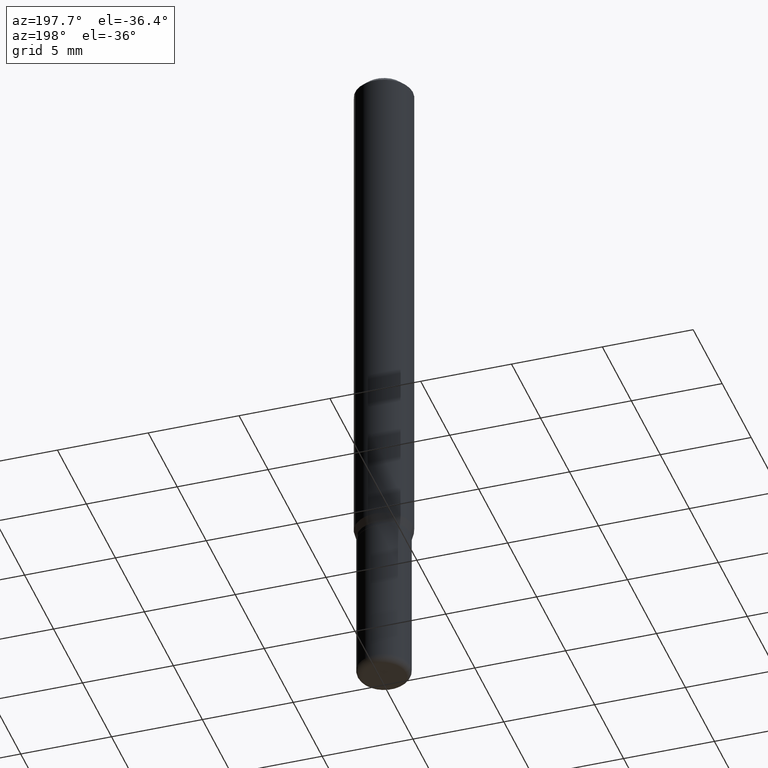
[diagram: clean part render]
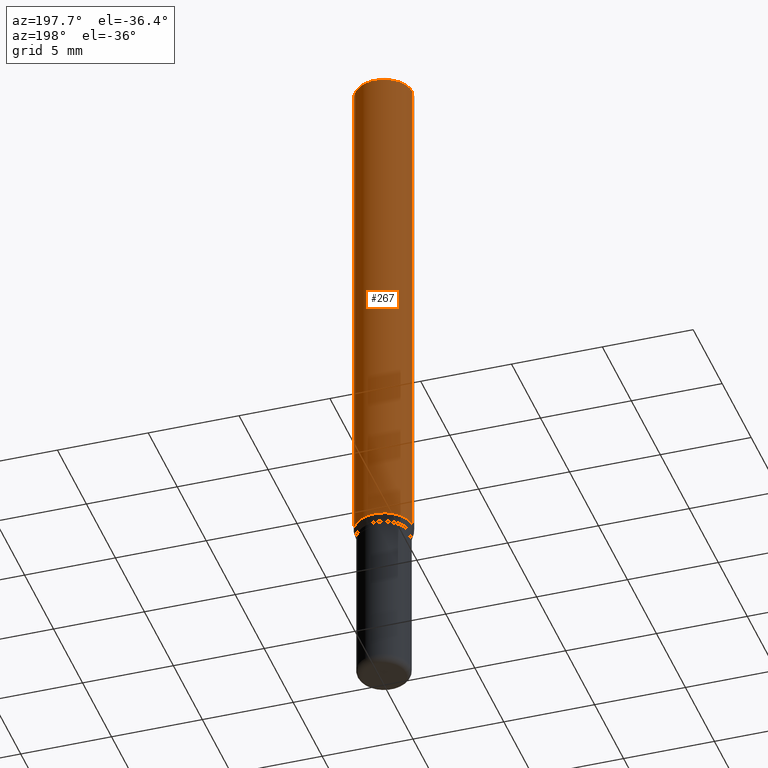
[diagram: same view with one face highlighted and labeled with its STEP entity id]
A machine part, auxiliary view. The second image highlights one B-rep face of the part: STEP entity #267.
In plain terms, the highlighted cylindrical surface (edge-blend (fillet) strip) has radius 1.5875 mm, axis along (-0, 0, 1).
Its self-contained STEP definition (entity closure, byte-faithful):
#41 = CYLINDRICAL_SURFACE ( 'NONE', #219, 0.06250000000000000000 ) ;
#43 = EDGE_CURVE ( 'NONE', #293, #129, #54, .T. ) ;
#54 = CIRCLE ( 'NONE', #506, 0.06250000000000000000 ) ;
#80 = FACE_OUTER_BOUND ( 'NONE', #102, .T. ) ;
#82 = CARTESIAN_POINT ( 'NONE',  ( -0.06250000000000000000, -3.488504994374133608E-15, -1.126339745962155803 ) ) ;
#97 = EDGE_CURVE ( 'NONE', #180, #319, #395, .T. ) ;
#102 = EDGE_LOOP ( 'NONE', ( #232, #144, #105, #205 ) ) ;
#105 = ORIENTED_EDGE ( 'NONE', *, *, #97, .F. ) ;
#110 = AXIS2_PLACEMENT_3D ( 'NONE', #197, #479, #476 ) ;
#121 = CARTESIAN_POINT ( 'NONE',  ( 0.06250000000000000000, -4.888073874380378612E-16, -0.01499999999999970281 ) ) ;
#129 = VERTEX_POINT ( 'NONE', #82 ) ;
#130 = CARTESIAN_POINT ( 'NONE',  ( 0.06250000000000000000, -4.369029371579587499E-15, -1.126339745962155803 ) ) ;
#144 = ORIENTED_EDGE ( 'NONE', *, *, #502, .T. ) ;
#154 = LINE ( 'NONE', #309, #196 ) ;
#180 = VERTEX_POINT ( 'NONE', #121 ) ;
#181 = DIRECTION ( 'NONE',  ( -2.445468806185136877E-29, 3.491481338843145188E-15, 1.000000000000000000 ) ) ;
#196 = VECTOR ( 'NONE', #473, 39.37007874015748143 ) ;
#197 = CARTESIAN_POINT ( 'NONE',  ( 3.668203209277632395E-31, -5.237222008264614861E-17, -0.01499999999999970281 ) ) ;
#198 = CARTESIAN_POINT ( 'NONE',  ( 0.000000000000000000, 0.000000000000000000, 0.000000000000000000 ) ) ;
#205 = ORIENTED_EDGE ( 'NONE', *, *, #365, .F. ) ;
#219 = AXIS2_PLACEMENT_3D ( 'NONE', #198, #477, #241 ) ;
#232 = ORIENTED_EDGE ( 'NONE', *, *, #43, .T. ) ;
#241 = DIRECTION ( 'NONE',  ( 1.000000000000000000, -6.982962677686266711E-15, 4.876176775795935793E-29 ) ) ;
#263 = CARTESIAN_POINT ( 'NONE',  ( -0.06250000000000000000, -1.548394002303358444E-15, -0.01499999999999970281 ) ) ;
#267 = ADVANCED_FACE ( 'NONE', ( #80 ), #41, .T. ) ;
#268 = VECTOR ( 'NONE', #181, 39.37007874015748143 ) ;
#293 = VERTEX_POINT ( 'NONE', #130 ) ;
#304 = CARTESIAN_POINT ( 'NONE',  ( 2.754428713916943180E-29, -3.932594204224195830E-15, -1.126339745962155803 ) ) ;
#309 = CARTESIAN_POINT ( 'NONE',  ( -0.06250000000000000000, 4.440892098500626162E-16, -3.074334431409316114E-30 ) ) ;
#319 = VERTEX_POINT ( 'NONE', #263 ) ;
#365 = EDGE_CURVE ( 'NONE', #293, #180, #457, .T. ) ;
#395 = CIRCLE ( 'NONE', #110, 0.06250000000000000000 ) ;
#418 = CARTESIAN_POINT ( 'NONE',  ( 0.06250000000000000000, -4.364351673553916694E-16, 3.047610484872459871E-30 ) ) ;
#457 = LINE ( 'NONE', #418, #268 ) ;
#465 = DIRECTION ( 'NONE',  ( -2.445468806185136597E-29, 3.491481338843145583E-15, 1.000000000000000000 ) ) ;
#473 = DIRECTION ( 'NONE',  ( -2.445468806185136877E-29, 3.491481338843145188E-15, 1.000000000000000000 ) ) ;
#476 = DIRECTION ( 'NONE',  ( 1.000000000000000000, -6.982962677686266711E-15, 0.000000000000000000 ) ) ;
#477 = DIRECTION ( 'NONE',  ( -2.445468806185136597E-29, 3.491481338843145583E-15, 1.000000000000000000 ) ) ;
#479 = DIRECTION ( 'NONE',  ( -2.445468806185136597E-29, 3.491481338843145583E-15, 1.000000000000000000 ) ) ;
#502 = EDGE_CURVE ( 'NONE', #129, #319, #154, .T. ) ;
#506 = AXIS2_PLACEMENT_3D ( 'NONE', #304, #465, #515 ) ;
#515 = DIRECTION ( 'NONE',  ( 1.000000000000000000, -6.982962677686262766E-15, 0.000000000000000000 ) ) ;